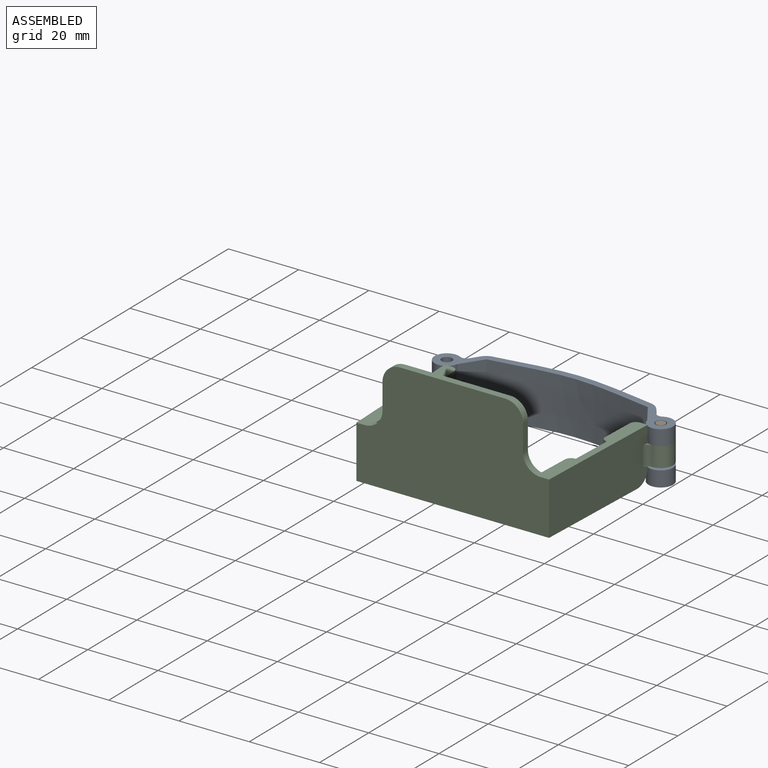
[diagram: assembled view]
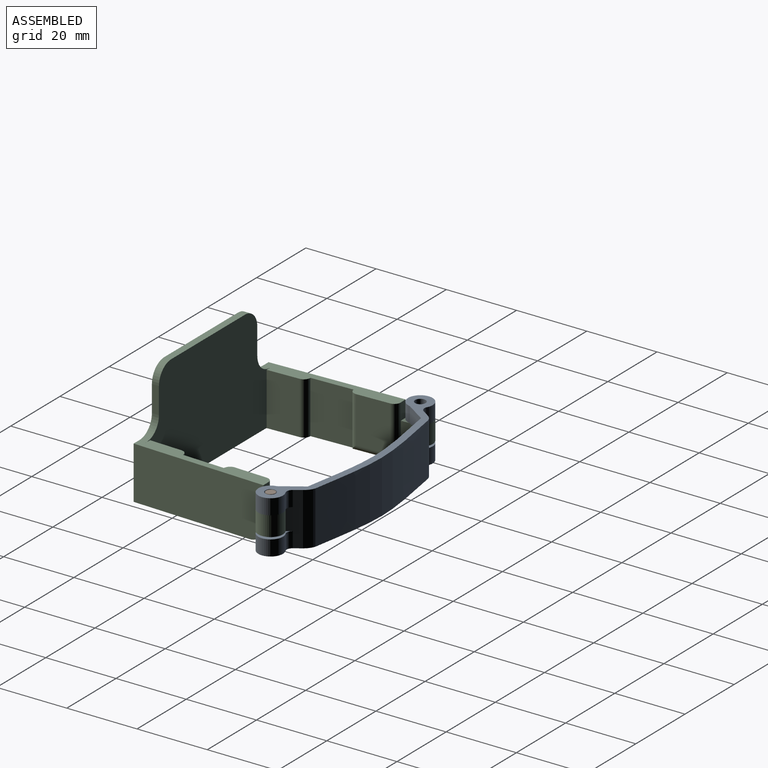
[diagram: assembled view, second angle]
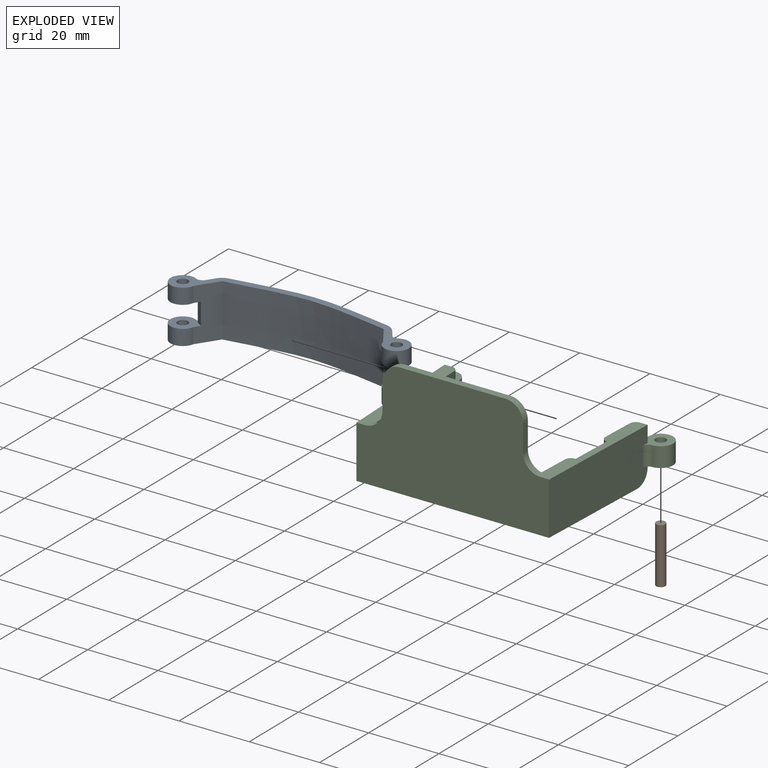
[diagram: exploded view]
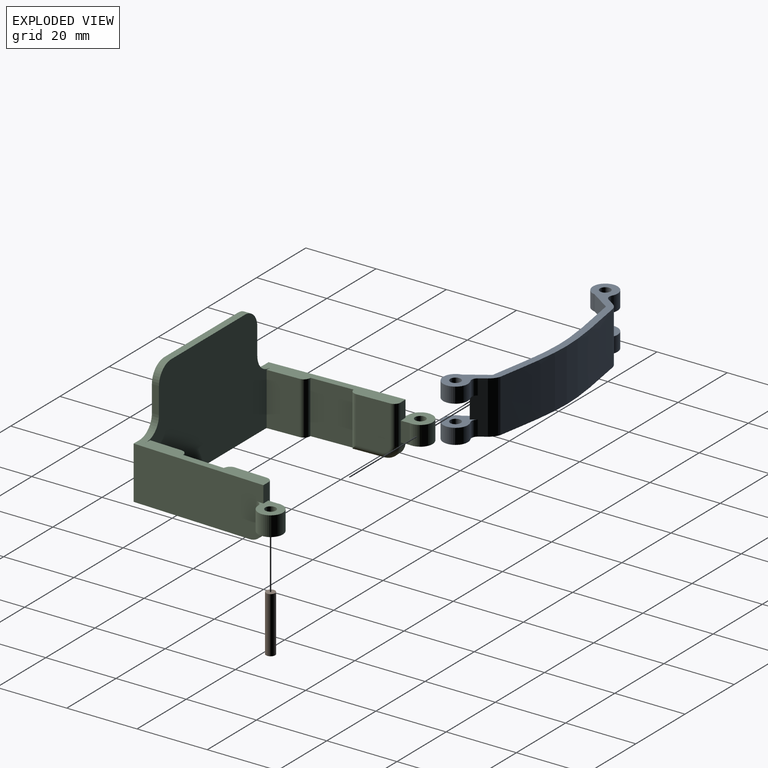
[diagram: exploded view, second angle]
ASSEMBLY  parts=3 mates=2
PART A: 28 faces, bbox 67.9x13.9x15 mm
  f0: cylinder r=3.5mm len=7mm, axis (0,0,-1), area 77.5mm2, adj f4,f17,f19,f24
  f1: cylinder r=3.5mm len=7mm, axis (0,0,-1), area 77.5mm2, adj f12,f17,f22,f25
  f2: cylinder r=1.5mm len=4.4mm, axis (0,0,-1), area 41.5mm2, adj f17,f22
  f3: cylinder r=1.5mm len=4.4mm, axis (0,0,-1), area 41.5mm2, adj f17,f19
  f4: plane 15x6mm, normal (-0.83,-0.55,0), area 96.5mm2, adj f0,f5,f14,f16,f17,f18,f19,f20
  f5: cylinder r=3.5mm len=7mm, axis (0,0,-1), area 77.5mm2, adj f4,f16,f20,f26
  f6: plane 15x3.53mm, normal (0.83,0.55,0), area 47.3mm2, adj f7,f16,f17,f18,f19,f20,f24,f26
  f7: cylinder r=4.71mm len=15mm, axis (0,0,-1), area 46.3mm2, adj f6,f8,f16,f17
  f8: extruded ~45.73x15mm, area 692.5mm2, adj f7,f9,f16,f17
  f9: cylinder r=3.55mm len=15mm, axis (0,0,-1), area 40.4mm2, adj f8,f10,f16,f17
  f10: plane 15x3.89mm, normal (-0.83,0.55,0), area 53.6mm2, adj f9,f16,f17,f21,f22,f23,f25,f27
  f11: cylinder r=3.5mm len=7mm, axis (0,0,-1), area 77.5mm2, adj f12,f16,f23,f27
  f12: plane 15x6mm, normal (0.83,-0.55,0), area 96.5mm2, adj f1,f11,f14,f16,f17,f21,f22,f23
  f13: cylinder r=1.5mm len=4.4mm, axis (0,0,-1), area 41.5mm2, adj f16,f23
  f14: extruded ~46x15mm, area 696.7mm2, adj f4,f12,f16,f17
  f15: cylinder r=1.5mm len=4.4mm, axis (0,0,-1), area 41.5mm2, adj f16,f20
  f16: plane 67.89x13.91mm, normal (0,0,1), area 184.5mm2, adj f4,f5,f6,f7,f8,f9,f10,f11
  f17: plane 67.89x13.91mm, normal (0,0,-1), area 184.5mm2, adj f0,f1,f2,f3,f4,f6,f7,f8
  f18: plane 6.2x1.66mm, normal (0.55,-0.83,0), area 12.4mm2, adj f4,f6,f19,f20
  f19: plane 7.99x7.12mm, normal (0,0,1), area 33.4mm2, adj f0,f3,f4,f6,f18,f24
  f20: plane 7.99x7.12mm, normal (0,0,-1), area 33.4mm2, adj f4,f5,f6,f15,f18,f26
  f21: plane 6.2x1.66mm, normal (-0.55,-0.83,0), area 12.4mm2, adj f10,f12,f22,f23
  f22: plane 7.99x7.12mm, normal (0,0,1), area 33.4mm2, adj f1,f2,f10,f12,f21,f25
  f23: plane 7.99x7.12mm, normal (0,0,-1), area 33.4mm2, adj f10,f11,f12,f13,f21,f27
  f24: cylinder r=1.68mm len=4.4mm, axis (0,0,-1), area 10.9mm2, adj f0,f6,f17,f19
  f25: cylinder r=1.68mm len=4.4mm, axis (0,0,-1), area 10.9mm2, adj f1,f10,f17,f22
  f26: cylinder r=1.68mm len=4.4mm, axis (0,0,-1), area 10.9mm2, adj f5,f6,f16,f20
  f27: cylinder r=1.68mm len=4.4mm, axis (0,0,-1), area 10.9mm2, adj f10,f11,f16,f23
PART B: 3 faces, bbox 2.6x2.6x16 mm
  f0: cylinder r=1.3mm len=16mm, axis (0,0,-1), area 130.7mm2, adj f1,f2
  f1: plane 2.6x2.6mm, normal (0,0,1), area 5.3mm2, adj f0
  f2: plane 2.6x2.6mm, normal (0,0,-1), area 5.3mm2, adj f0
PART C: 50 faces, bbox 67.9x44.6x32.8 mm
  f0: plane 4.7x2mm, normal (-0.04,1,0), area 9.4mm2, adj f5,f12,f19,f44
  f1: plane 5.6x2.53mm, normal (-1,0.04,0), area 14.2mm2, adj f8,f17,f21,f40
  f2: plane 15x11.99mm, normal (-1,0.04,0), area 180mm2, adj f6,f11,f41,f48
  f3: plane 5.6x2.46mm, normal (1,0.04,0), area 13.8mm2, adj f7,f19,f22,f44
  f4: plane 15x11.99mm, normal (1,0.04,0), area 180mm2, adj f5,f6,f46,f49
  f5: plane 38.05x5.2mm, normal (0,0,1), area 118.2mm2, adj f0,f4,f12,f13,f15,f26,f34,f35
  f6: plane 57.49x34.05mm, normal (0,0,-1), area 276.1mm2, adj f2,f4,f12,f13,f14,f15,f32,f33
  f7: cylinder r=3.5mm len=7mm, axis (0,0,-1), area 95.6mm2, adj f3,f19,f22,f30
  f8: cylinder r=3.5mm len=7mm, axis (0,0,-1), area 95.6mm2, adj f1,f17,f21,f31
  f9: cylinder r=1.5mm len=5.6mm, axis (0,0,-1), area 52.8mm2, adj f17,f21
  f10: cylinder r=1.5mm len=5.6mm, axis (0,0,-1), area 52.8mm2, adj f19,f22
  f11: plane 37.97x5.2mm, normal (0,0,1), area 118mm2, adj f2,f13,f14,f15,f16,f27,f37,f38
  f12: plane 37.97x15mm, normal (-1,-0.04,0), area 555.4mm2, adj f0,f5,f6,f13,f18,f19,f22,f30
  f13: plane 54.85x32.5mm, normal (0,-1,0), area 1522.7mm2, adj f5,f6,f11,f12,f14,f23,f24,f25
  f14: plane 37.97x15mm, normal (1,-0.04,0), area 555.4mm2, adj f6,f11,f13,f16,f17,f20,f21,f31
  f15: plane 51x32.5mm, normal (0,1,0), area 1465mm2, adj f5,f6,f11,f23,f24,f25,f26,f27
  f16: plane 4.7x2mm, normal (0,1,0), area 9.4mm2, adj f11,f14,f17,f40
  f17: plane 8.61x7.05mm, normal (0,0,1), area 33.9mm2, adj f1,f8,f9,f14,f16,f31
  f18: plane 2x0.7mm, normal (-0.04,1,0), area 1.4mm2, adj f12,f22,f32,f44
  f19: plane 8.61x7.04mm, normal (0,0,1), area 33.8mm2, adj f0,f3,f7,f10,f12,f30
  f20: plane 2x0.7mm, normal (0,1,0), area 1.4mm2, adj f14,f21,f33,f40
  f21: plane 8.61x7.05mm, normal (0,0,-1), area 33.9mm2, adj f1,f8,f9,f14,f20,f31
  f22: plane 8.61x7.04mm, normal (0,0,-1), area 33.8mm2, adj f3,f7,f10,f12,f18,f30
  f23: plane 7.5x2mm, normal (-1,0,0), area 15mm2, adj f13,f15,f26,f28
  f24: plane 7.5x2mm, normal (1,0,0), area 15mm2, adj f13,f15,f27,f29
  f25: plane 30x2mm, normal (0,0,1), area 60mm2, adj f13,f15,f28,f29
  f26: cylinder r=5mm len=5mm, axis (0,1,0), area 15.7mm2, adj f5,f13,f15,f23
  f27: cylinder r=5mm len=5mm, axis (0,-1,0), area 15.7mm2, adj f11,f13,f15,f24
  f28: cylinder r=5mm len=5mm, axis (0,1,0), area 15.7mm2, adj f13,f15,f23,f25
  f29: cylinder r=5mm len=5mm, axis (0,-1,0), area 15.7mm2, adj f13,f15,f24,f25
  f30: cylinder r=1.68mm len=5.6mm, axis (0,0,-1), area 14.3mm2, adj f7,f12,f19,f22
  f31: cylinder r=1.68mm len=5.6mm, axis (0,0,-1), area 14.3mm2, adj f8,f14,f17,f21
  f32: cylinder r=4mm len=4.08mm, axis (1,0.04,0), area 12.6mm2, adj f6,f12,f18,f45
  f33: cylinder r=4mm len=4mm, axis (1,0,0), area 12.6mm2, adj f6,f14,f20,f42
  f34: plane 15x1.8mm, normal (0.04,-1,0), area 27mm2, adj f5,f6,f15,f35
  f35: plane 15x9.17mm, normal (1,0.04,0), area 137.7mm2, adj f5,f6,f34,f49
  f36: plane 13.2x9.48mm, normal (1,0.04,0), area 124.2mm2, adj f5,f44,f45,f46,f47
  f37: plane 15x1.8mm, normal (-0.04,-1,0), area 27mm2, adj f6,f11,f15,f38
  f38: plane 15x9.19mm, normal (-1,0.04,0), area 138mm2, adj f6,f11,f37,f48
  f39: plane 13.2x9.39mm, normal (-1,0.04,0), area 122.9mm2, adj f11,f40,f41,f42,f43
  f40: cylinder r=1.8mm len=11mm, axis (0,0,1), area 31.1mm2, adj f1,f11,f16,f20,f39,f42
  f41: cylinder r=1.8mm len=15mm, axis (0,0,-1), area 40.6mm2, adj f2,f11,f39,f43
  f42: bspline ~4x4mm, area 14.9mm2, adj f33,f39,f40,f43
  f43: cylinder r=1.8mm len=9.05mm, axis (-0.04,-1,0), area 23.6mm2, adj f6,f39,f41,f42
  f44: cylinder r=1.8mm len=11mm, axis (0,0,1), area 31.1mm2, adj f0,f3,f5,f18,f36,f45
  f45: torus R=2.2mm, axis (1,0.04,0), area 14.9mm2, adj f32,f36,f44,f47
  f46: cylinder r=1.8mm len=15mm, axis (0,0,1), area 40.6mm2, adj f4,f5,f36,f47
  f47: cylinder r=1.8mm len=9.15mm, axis (-0.04,1,0), area 23.9mm2, adj f6,f36,f45,f46
  f48: cylinder r=1.8mm len=15mm, axis (0,0,1), area 42.4mm2, adj f2,f6,f11,f38
  f49: cylinder r=1.8mm len=15mm, axis (0,0,-1), area 42.4mm2, adj f4,f5,f6,f35
PLACE A t=(0.24,4.39,2.64)mm
PLACE B t=(-14.22,10.7,-5.86)mm
PLACE C t=(0.24,4.39,2.94)mm
MATE fastened B.f0 <-> A.f0  axis (0,0,1) through (30.68,43.5,10.14)mm
MATE revolute C.f8 <-> A.f0  axis (0,0,-1) through (30.68,43.5,5.74)mm
